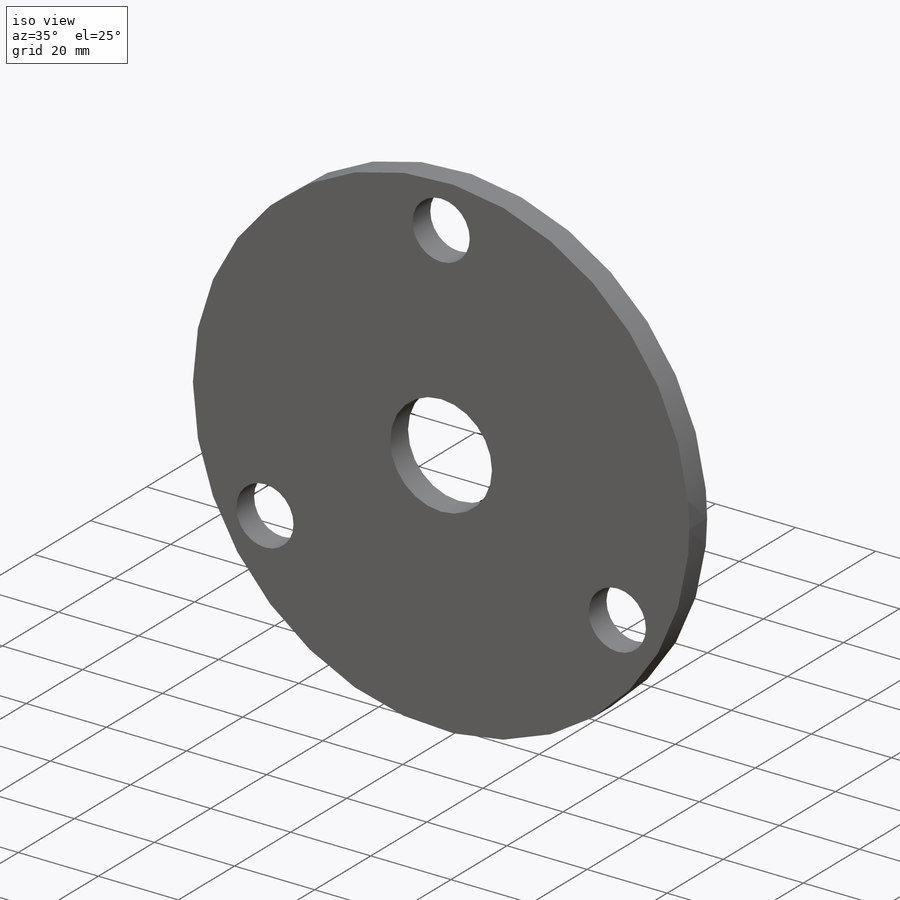
[diagram: iso view]
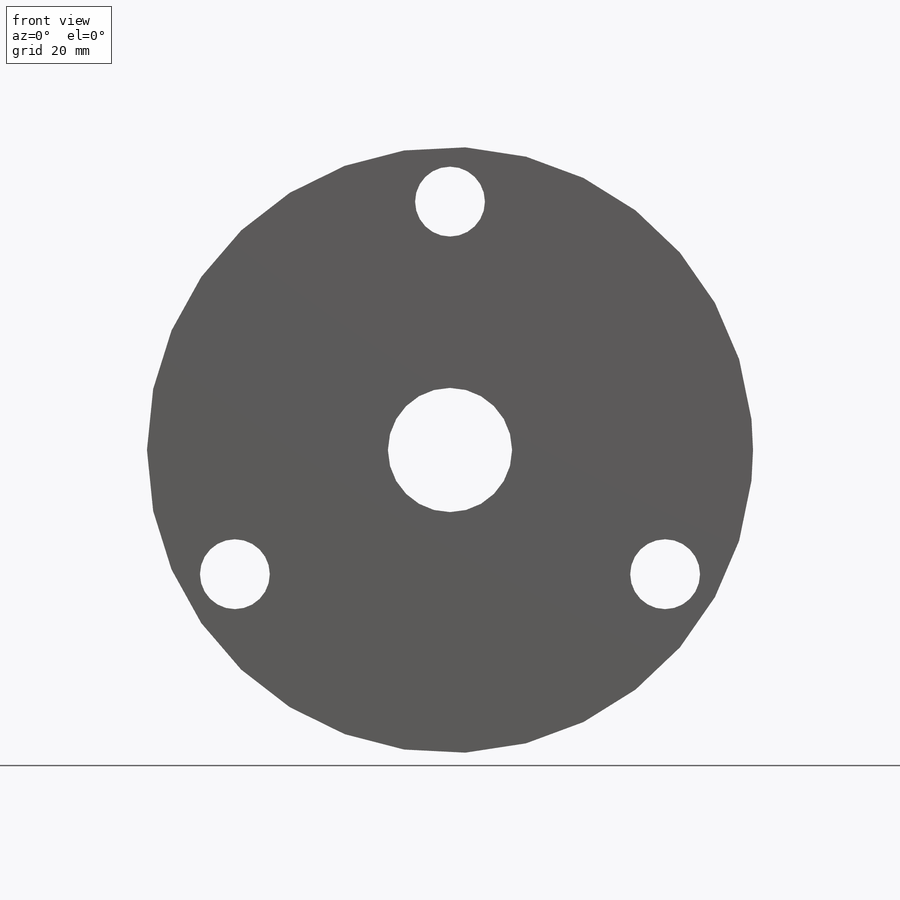
[diagram: front view]
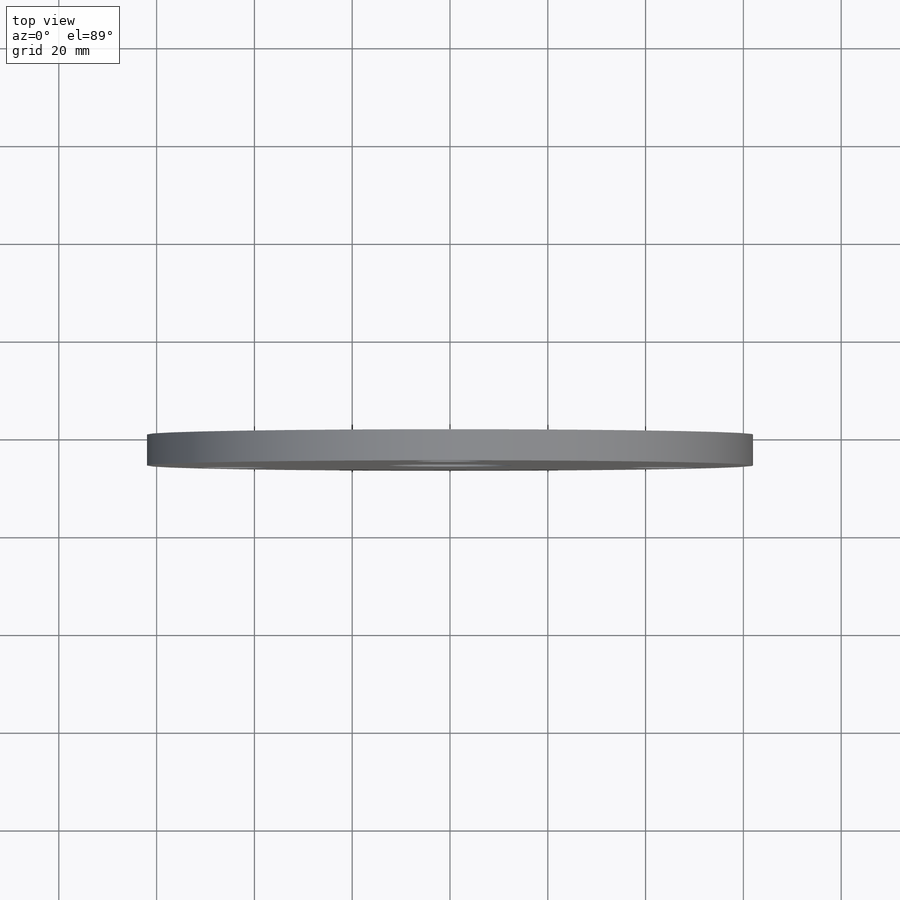
[diagram: top view]
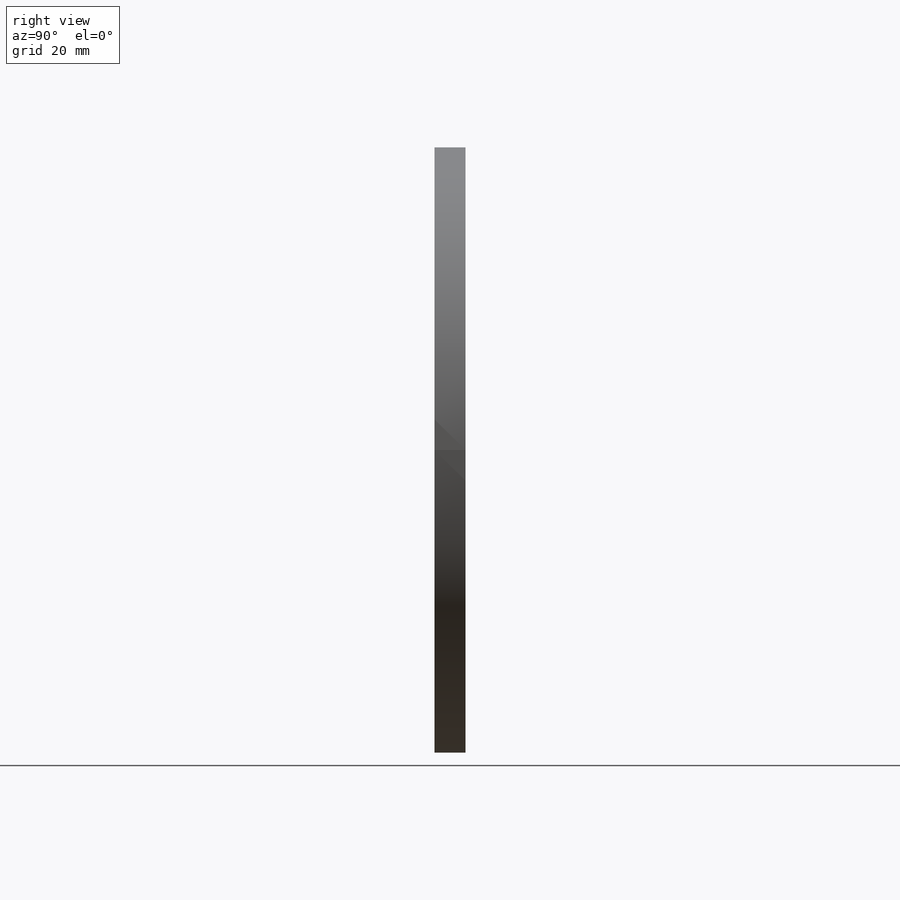
[diagram: right view]
SOLIDWORKS PART (.sldprt)
format: sldprt  version: not decoded by parser v0  size: 197,120 bytes
history: native  units: mm
features: sketch x5, hole x2, material x1, extrude x1 + 1 further entry (+13 scaffold rows collapsed)
feature tree (23):
  scaffold x13  (default folders/planes/origin — collapsed)
  material  "6061-T6 Al"
  "Origin"  ID=-1
  sketch  "Sketch1"  dims[D1=123.952mm]
  extrude  "Boss-Extrude1"  Depth=6.35mm
  hole  "1 (1) Diameter Hole1"  Diameter=25.4mm Depth=6.35mm
  sketch  "Sketch3"
  sketch  "Sketch4"  dims[hole-wizard template sketch: 60 standard entries collapsed; hole parameters kept: c18.Thru Hole Depth=6.35mm]
  hole  "9/16 (0.5625) Diameter Hole1"  Diameter=14.2875mm Depth=6.35mm
  sketch  "Sketch6"  dims[c1.D1=50.8mm c1.D2=50.8mm c2.D2=120.0deg c2.D3=50.8mm c3.D3=120.0deg]
  sketch  "Sketch7"  dims[hole-wizard template sketch: 60 standard entries collapsed; hole parameters kept: c18.Thru Hole Depth=6.35mm]
decode coverage: 7 of 8 modeling features carry decoded parameters; 1 rows unclassified (native names shown)
note: ~ marks probable driven/reference dimensions
note: suppression state not decoded; provenance and decode notes live in map.json
